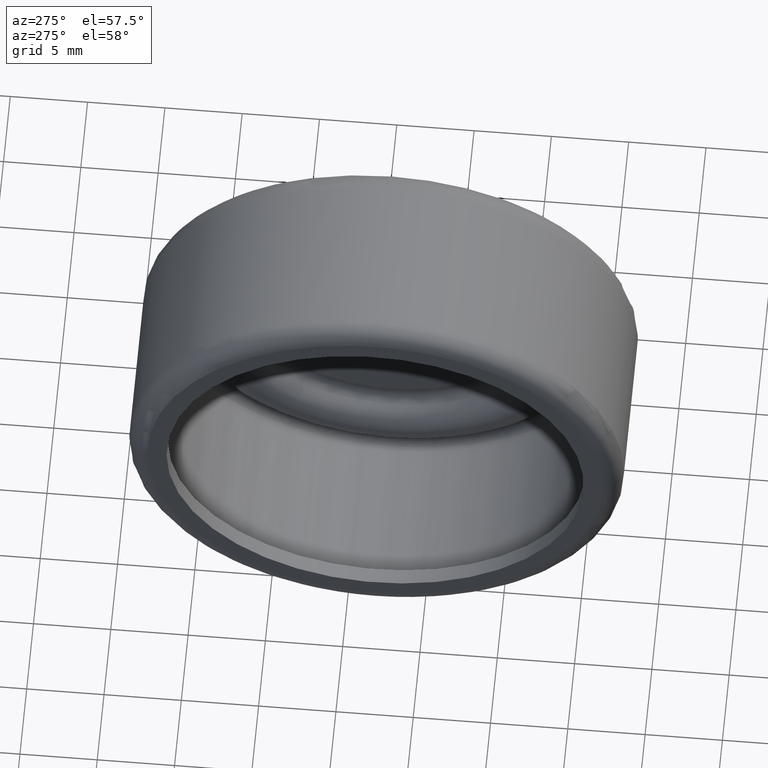
[diagram: clean part render]
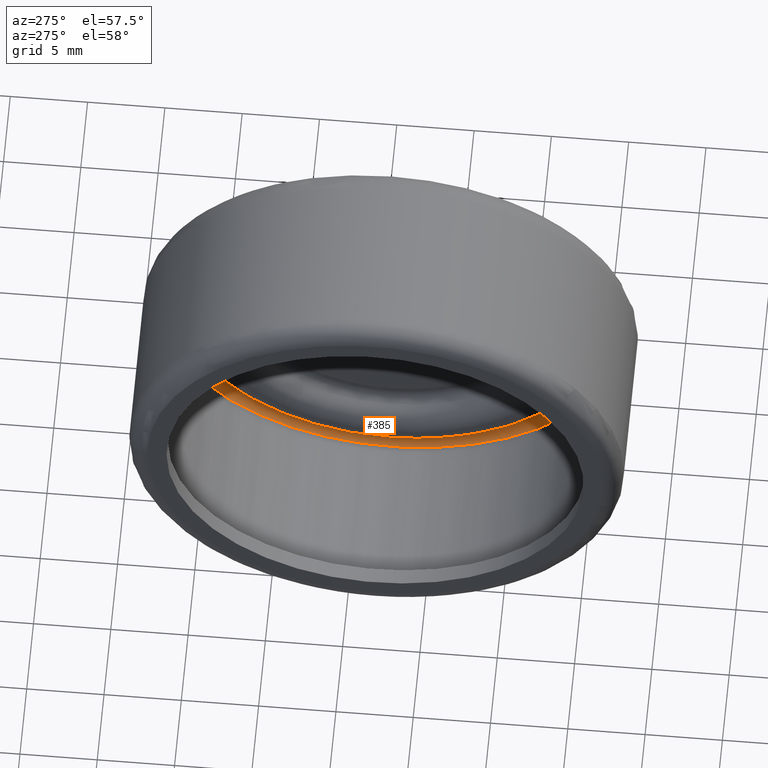
[diagram: same view with one face highlighted and labeled with its STEP entity id]
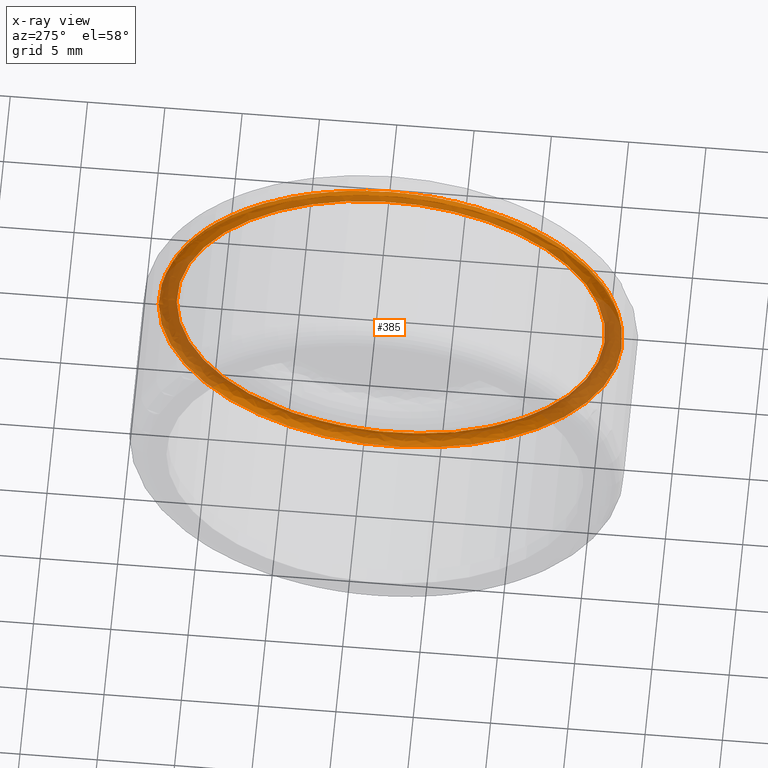
[diagram: x-ray of the same camera — body ghosted, the highlighted face saturated]
A machine part, auxiliary view. The second image highlights one B-rep face of the part: STEP entity #385.
The next image is the same camera in x-ray: the body ghosted, the highlighted face saturated — about 32% of this face is hidden behind the body in this view.
In plain terms, the highlighted face is a freeform B-spline surface patch.
Its self-contained STEP definition (entity closure, byte-faithful):
#303=CARTESIAN_POINT('',(-0.301222390758492,17.020202223562883,0.0));
#304=VERTEX_POINT('',#303);
#305=CARTESIAN_POINT('',(-0.301222390758492,3.167852655892097,0.0));
#306=DIRECTION('',(1.0,0.0,0.0));
#307=DIRECTION('',(0.0,1.0,0.0));
#308=AXIS2_PLACEMENT_3D('',#305,#306,#307);
#309=CIRCLE('',#308,13.852349567670785);
#310=EDGE_CURVE('',#304,#304,#309,.T.);
#318=CARTESIAN_POINT('',(-0.582194819326650,3.167852655892097,15.000000000000002));
#319=CARTESIAN_POINT('',(0.026024801001286,3.167852655892097,15.000000000000002));
#320=CARTESIAN_POINT('',(0.026024801001286,3.167852655892097,14.391780379672067));
#321=CARTESIAN_POINT('',(0.026024801001286,3.167852655892096,13.783560759344132));
#322=CARTESIAN_POINT('',(-0.582194819326650,3.167852655892097,13.783560759344132));
#323=CARTESIAN_POINT('',(-0.582194819326650,-11.832147344107904,14.999999999999996));
#324=CARTESIAN_POINT('',(0.026024801001286,-11.832147344107902,14.999999999999996));
#325=CARTESIAN_POINT('',(0.026024801001286,-11.223927723779967,14.391780379672062));
#326=CARTESIAN_POINT('',(0.026024801001286,-10.615708103452032,13.783560759344127));
#327=CARTESIAN_POINT('',(-0.582194819326650,-10.615708103452032,13.783560759344127));
#328=CARTESIAN_POINT('',(-0.582194819326650,-11.832147344107904,-1.776357E-015));
#329=CARTESIAN_POINT('',(0.026024801001286,-11.832147344107904,-1.776357E-015));
#330=CARTESIAN_POINT('',(0.026024801001286,-11.223927723779969,-1.776357E-015));
#331=CARTESIAN_POINT('',(0.026024801001286,-10.615708103452034,-1.776357E-015));
#332=CARTESIAN_POINT('',(-0.582194819326650,-10.615708103452034,-1.776357E-015));
#333=CARTESIAN_POINT('',(-0.582194819326650,-11.832147344107899,-15.0));
#334=CARTESIAN_POINT('',(0.026024801001286,-11.832147344107899,-15.0));
#335=CARTESIAN_POINT('',(0.026024801001286,-11.223927723779964,-14.391780379672065));
#336=CARTESIAN_POINT('',(0.026024801001286,-10.615708103452029,-13.783560759344130));
#337=CARTESIAN_POINT('',(-0.582194819326650,-10.615708103452029,-13.783560759344130));
#338=CARTESIAN_POINT('',(-0.582194819326650,3.167852655892100,-15.000000000000002));
#339=CARTESIAN_POINT('',(0.026024801001286,3.167852655892100,-15.000000000000002));
#340=CARTESIAN_POINT('',(0.026024801001286,3.167852655892100,-14.391780379672067));
#341=CARTESIAN_POINT('',(0.026024801001286,3.167852655892100,-13.783560759344132));
#342=CARTESIAN_POINT('',(-0.582194819326650,3.167852655892100,-13.783560759344132));
#343=CARTESIAN_POINT('',(-0.582194819326650,18.167852655892098,-14.999999999999996));
#344=CARTESIAN_POINT('',(0.026024801001286,18.167852655892098,-14.999999999999996));
#345=CARTESIAN_POINT('',(0.026024801001286,17.559633035564161,-14.391780379672062));
#346=CARTESIAN_POINT('',(0.026024801001286,16.951413415236228,-13.783560759344127));
#347=CARTESIAN_POINT('',(-0.582194819326650,16.951413415236228,-13.783560759344127));
#348=CARTESIAN_POINT('',(-0.582194819326650,18.167852655892101,1.776357E-015));
#349=CARTESIAN_POINT('',(0.026024801001286,18.167852655892101,1.776357E-015));
#350=CARTESIAN_POINT('',(0.026024801001286,17.559633035564165,1.776357E-015));
#351=CARTESIAN_POINT('',(0.026024801001286,16.951413415236232,1.776357E-015));
#352=CARTESIAN_POINT('',(-0.582194819326650,16.951413415236232,1.776357E-015));
#353=CARTESIAN_POINT('',(-0.582194819326650,18.167852655892098,15.0));
#354=CARTESIAN_POINT('',(0.026024801001286,18.167852655892098,15.0));
#355=CARTESIAN_POINT('',(0.026024801001286,17.559633035564161,14.391780379672065));
#356=CARTESIAN_POINT('',(0.026024801001286,16.951413415236228,13.783560759344130));
#357=CARTESIAN_POINT('',(-0.582194819326650,16.951413415236228,13.783560759344130));
#358=CARTESIAN_POINT('',(-0.582194819326650,3.167852655892097,15.000000000000002));
#359=CARTESIAN_POINT('',(0.026024801001286,3.167852655892097,15.000000000000002));
#360=CARTESIAN_POINT('',(0.026024801001286,3.167852655892097,14.391780379672067));
#361=CARTESIAN_POINT('',(0.026024801001286,3.167852655892096,13.783560759344132));
#362=CARTESIAN_POINT('',(-0.582194819326650,3.167852655892097,13.783560759344132));
#370=(BOUNDED_SURFACE()B_SPLINE_SURFACE(2,2,((#318,#323,#328,#333,#338,#343,#348,#353,#358),(#319,#324,#329,#334,#339,#344,#349,#354,#359),(#320,#325,#330,#335,#340,#345,#350,#355,#360),(#321,#326,#331,#336,#341,#346,#351,#356,#361),(#322,#327,#332,#337,#342,#347,#352,#357,#362)),.UNSPECIFIED.,.F.,.T.,.U.)B_SPLINE_SURFACE_WITH_KNOTS((3,2,3),(3,2,2,2,3),(-1.095219E-015,1.570796326794897,3.141592653589794),(0.0,1.570796326794897,3.141592653589793,4.712388980384690,6.283185307179586),.UNSPECIFIED.)GEOMETRIC_REPRESENTATION_ITEM()RATIONAL_B_SPLINE_SURFACE(((1.0,0.707106781186548,1.0,0.707106781186548,1.0,0.707106781186548,1.0,0.707106781186548,1.0),(0.707106781186547,0.500000000000000,0.707106781186547,0.500000000000000,0.707106781186547,0.500000000000000,0.707106781186547,0.500000000000000,0.707106781186547),(1.0,0.707106781186548,1.0,0.707106781186548,1.0,0.707106781186548,1.0,0.707106781186548,1.0),(0.707106781186548,0.500000000000000,0.707106781186548,0.500000000000000,0.707106781186548,0.500000000000000,0.707106781186548,0.500000000000000,0.707106781186548),(1.0,0.707106781186548,1.0,0.707106781186548,1.0,0.707106781186548,1.0,0.707106781186548,1.0)))REPRESENTATION_ITEM('')SURFACE());
#371=CARTESIAN_POINT('',(-0.582194819326649,18.167852655892098,0.0));
#372=VERTEX_POINT('',#371);
#373=CARTESIAN_POINT('',(-0.582194819326649,3.167852655892097,0.0));
#374=DIRECTION('',(1.0,0.0,0.0));
#375=DIRECTION('',(0.0,1.0,0.0));
#376=AXIS2_PLACEMENT_3D('',#373,#374,#375);
#377=CIRCLE('',#376,15.0);
#378=EDGE_CURVE('',#372,#372,#377,.T.);
#379=ORIENTED_EDGE('',*,*,#378,.F.);
#380=EDGE_LOOP('',(#379));
#381=FACE_OUTER_BOUND('',#380,.T.);
#382=ORIENTED_EDGE('',*,*,#310,.T.);
#383=EDGE_LOOP('',(#382));
#384=FACE_BOUND('',#383,.T.);
#385=ADVANCED_FACE('',(#381,#384),#370,.T.);